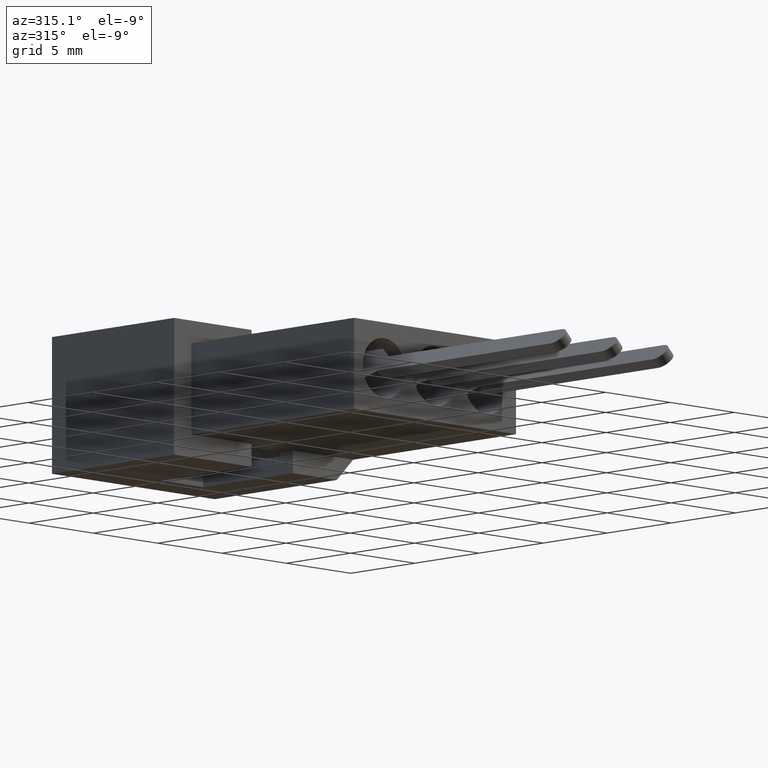
[diagram: clean part render]
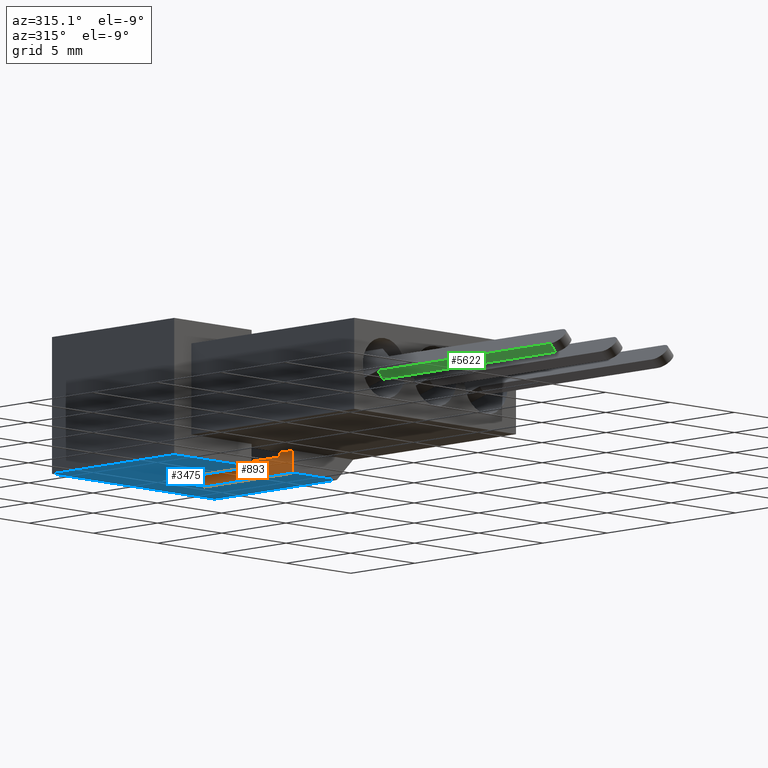
[diagram: same view with three faces highlighted in distinct colors, each labeled with its STEP entity id]
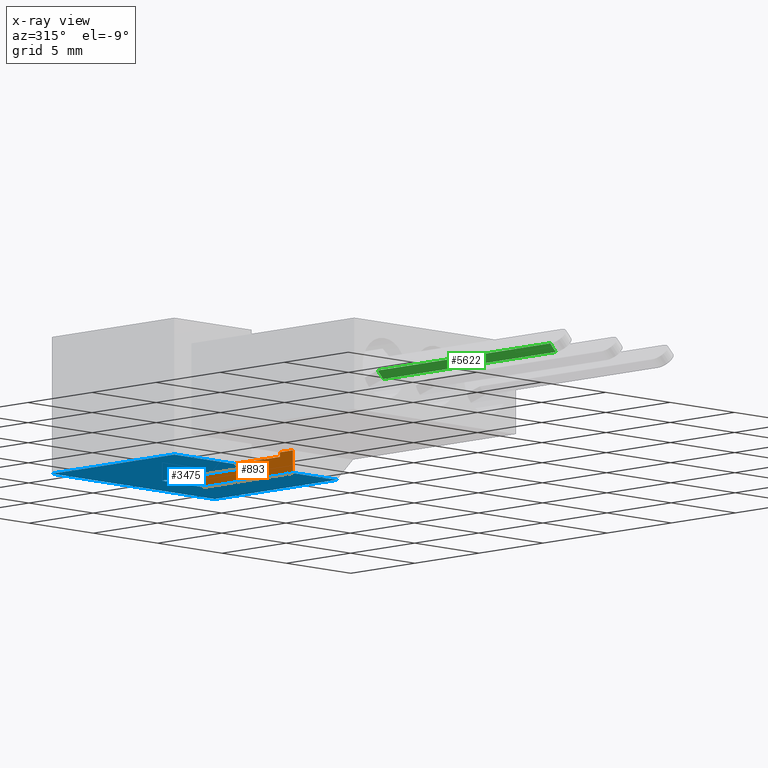
[diagram: x-ray of the same camera — body ghosted, the three highlighted faces saturated]
A machine part, auxiliary view with three faces highlighted in distinct colors.
The next image is the same camera in x-ray (body ghosted, the three faces saturated) — at least one of them is partly hidden behind the body in this view.
Their STEP definitions:

[orange] entity #893 — the highlighted planar face has unit normal (-1, -0, 0).
#45 = DIRECTION ( 'NONE',  ( 1.241749088029210900E-016, -1.000000000000000000, 0.0000000000000000000 ) ) ;
#85 = EDGE_CURVE ( 'NONE', #3598, #4006, #1397, .T. ) ;
#142 = CARTESIAN_POINT ( 'NONE',  ( 5.562599999999996200, 6.984999999999999400, -3.809999999999999600 ) ) ;
#167 = EDGE_CURVE ( 'NONE', #2145, #5290, #358, .T. ) ;
#174 = ORIENTED_EDGE ( 'NONE', *, *, #167, .T. ) ;
#253 = VECTOR ( 'NONE', #2744, 1000.000000000000000 ) ;
#280 = CARTESIAN_POINT ( 'NONE',  ( 5.562599999999997100, 3.919359615991188300E-016, -3.809999999999999600 ) ) ;
#358 = LINE ( 'NONE', #2122, #1166 ) ;
#653 = DIRECTION ( 'NONE',  ( -1.241749088029210900E-016, 1.000000000000000000, 0.0000000000000000000 ) ) ;
#772 = EDGE_LOOP ( 'NONE', ( #1433, #174, #2673, #6359, #4642, #4720 ) ) ;
#855 = EDGE_CURVE ( 'NONE', #1230, #5290, #4161, .T. ) ;
#893 = ADVANCED_FACE ( 'NONE', ( #5252 ), #2102, .T. ) ;
#1052 = DIRECTION ( 'NONE',  ( -1.000000000000000000, -1.241749088029210900E-016, 0.0000000000000000000 ) ) ;
#1057 = DIRECTION ( 'NONE',  ( 0.0000000000000000000, 0.0000000000000000000, -1.000000000000000000 ) ) ;
#1166 = VECTOR ( 'NONE', #2699, 1000.000000000000000 ) ;
#1178 = CARTESIAN_POINT ( 'NONE',  ( 5.562599999999992700, 0.0000000000000000000, -2.540000000000000000 ) ) ;
#1219 = CARTESIAN_POINT ( 'NONE',  ( 5.562599999999996200, 6.984999999999999400, -3.809999999999999600 ) ) ;
#1230 = VERTEX_POINT ( 'NONE', #280 ) ;
#1366 = VECTOR ( 'NONE', #1057, 1000.000000000000000 ) ;
#1386 = CARTESIAN_POINT ( 'NONE',  ( 5.562599999999996200, 6.984999999999999400, -2.794000000000000500 ) ) ;
#1397 = LINE ( 'NONE', #2193, #6043 ) ;
#1433 = ORIENTED_EDGE ( 'NONE', *, *, #3780, .T. ) ;
#1597 = LINE ( 'NONE', #5774, #253 ) ;
#2102 = PLANE ( 'NONE',  #3388 ) ;
#2122 = CARTESIAN_POINT ( 'NONE',  ( 5.562599999999996200, 6.984999999999999400, -2.539999999999999600 ) ) ;
#2145 = VERTEX_POINT ( 'NONE', #1386 ) ;
#2193 = CARTESIAN_POINT ( 'NONE',  ( 5.562599999999996200, 6.984999999999999400, -2.539999999999999600 ) ) ;
#2663 = CARTESIAN_POINT ( 'NONE',  ( 5.562599999999996200, 6.984999999999999400, -2.539999999999999600 ) ) ;
#2673 = ORIENTED_EDGE ( 'NONE', *, *, #855, .F. ) ;
#2699 = DIRECTION ( 'NONE',  ( -0.0000000000000000000, -0.0000000000000000000, -1.000000000000000000 ) ) ;
#2744 = DIRECTION ( 'NONE',  ( -1.241749088029210900E-016, 1.000000000000000000, 1.986106413798025200E-032 ) ) ;
#3164 = DIRECTION ( 'NONE',  ( -0.0000000000000000000, -0.0000000000000000000, -1.000000000000000000 ) ) ;
#3388 = AXIS2_PLACEMENT_3D ( 'NONE', #2663, #1052, #45 ) ;
#3598 = VERTEX_POINT ( 'NONE', #1178 ) ;
#3650 = VERTEX_POINT ( 'NONE', #4191 ) ;
#3780 = EDGE_CURVE ( 'NONE', #3650, #2145, #1597, .T. ) ;
#4006 = VERTEX_POINT ( 'NONE', #4966 ) ;
#4161 = LINE ( 'NONE', #142, #5331 ) ;
#4191 = CARTESIAN_POINT ( 'NONE',  ( 5.562599999999997100, 1.015999999999999600, -2.794000000000001400 ) ) ;
#4642 = ORIENTED_EDGE ( 'NONE', *, *, #85, .T. ) ;
#4668 = DIRECTION ( 'NONE',  ( -1.241749088029210900E-016, 1.000000000000000000, 0.0000000000000000000 ) ) ;
#4720 = ORIENTED_EDGE ( 'NONE', *, *, #5043, .T. ) ;
#4966 = CARTESIAN_POINT ( 'NONE',  ( 5.562599999999997100, 1.016000000000001300, -2.539999999999999600 ) ) ;
#4990 = CARTESIAN_POINT ( 'NONE',  ( 5.562599999999997100, 1.015999999999999600, 0.0000000000000000000 ) ) ;
#5043 = EDGE_CURVE ( 'NONE', #4006, #3650, #6401, .T. ) ;
#5189 = LINE ( 'NONE', #6060, #5269 ) ;
#5252 = FACE_OUTER_BOUND ( 'NONE', #772, .T. ) ;
#5269 = VECTOR ( 'NONE', #3164, 1000.000000000000000 ) ;
#5290 = VERTEX_POINT ( 'NONE', #1219 ) ;
#5331 = VECTOR ( 'NONE', #4668, 1000.000000000000000 ) ;
#5774 = CARTESIAN_POINT ( 'NONE',  ( 5.562599999999997100, 1.016000000000000700, -2.794000000000000900 ) ) ;
#6043 = VECTOR ( 'NONE', #653, 1000.000000000000000 ) ;
#6060 = CARTESIAN_POINT ( 'NONE',  ( 5.562599999999997100, 3.919359615991188300E-016, -2.539999999999999600 ) ) ;
#6178 = EDGE_CURVE ( 'NONE', #3598, #1230, #5189, .T. ) ;
#6359 = ORIENTED_EDGE ( 'NONE', *, *, #6178, .F. ) ;
#6401 = LINE ( 'NONE', #4990, #1366 ) ;

[blue] entity #3475 — the highlighted planar face has unit normal (0, 0, 1).
#11 = CARTESIAN_POINT ( 'NONE',  ( 5.562599999999996200, 6.984999999999999400, -3.809999999999999600 ) ) ;
#142 = CARTESIAN_POINT ( 'NONE',  ( 5.562599999999996200, 6.984999999999999400, -3.809999999999999600 ) ) ;
#280 = CARTESIAN_POINT ( 'NONE',  ( 5.562599999999997100, 3.919359615991188300E-016, -3.809999999999999600 ) ) ;
#302 = VECTOR ( 'NONE', #470, 1000.000000000000000 ) ;
#381 = LINE ( 'NONE', #11, #2697 ) ;
#392 = VERTEX_POINT ( 'NONE', #2327 ) ;
#443 = AXIS2_PLACEMENT_3D ( 'NONE', #5445, #3896, #4464 ) ;
#470 = DIRECTION ( 'NONE',  ( -1.000000000000000000, -0.0000000000000000000, -0.0000000000000000000 ) ) ;
#500 = CARTESIAN_POINT ( 'NONE',  ( -3.657599999999998600, 0.0000000000000000000, -3.809999999999999600 ) ) ;
#595 = ORIENTED_EDGE ( 'NONE', *, *, #855, .T. ) ;
#614 = LINE ( 'NONE', #3289, #302 ) ;
#855 = EDGE_CURVE ( 'NONE', #1230, #5290, #4161, .T. ) ;
#877 = PLANE ( 'NONE',  #443 ) ;
#880 = EDGE_CURVE ( 'NONE', #2115, #3885, #2963, .T. ) ;
#1018 = LINE ( 'NONE', #6233, #3811 ) ;
#1105 = DIRECTION ( 'NONE',  ( -1.000000000000000000, -0.0000000000000000000, -0.0000000000000000000 ) ) ;
#1219 = CARTESIAN_POINT ( 'NONE',  ( 5.562599999999996200, 6.984999999999999400, -3.809999999999999600 ) ) ;
#1230 = VERTEX_POINT ( 'NONE', #280 ) ;
#1242 = ORIENTED_EDGE ( 'NONE', *, *, #5536, .F. ) ;
#1251 = EDGE_CURVE ( 'NONE', #4083, #4798, #3118, .T. ) ;
#1375 = DIRECTION ( 'NONE',  ( 1.241749088029210900E-016, -1.000000000000000000, 0.0000000000000000000 ) ) ;
#1733 = CARTESIAN_POINT ( 'NONE',  ( 2.362199999999997400, 6.984999999999999400, -3.809999999999999600 ) ) ;
#2115 = VERTEX_POINT ( 'NONE', #4939 ) ;
#2327 = CARTESIAN_POINT ( 'NONE',  ( -3.657599999999998600, 9.525000000000000400, -3.809999999999999600 ) ) ;
#2431 = EDGE_CURVE ( 'NONE', #3885, #1230, #2638, .T. ) ;
#2575 = VECTOR ( 'NONE', #3115, 1000.000000000000000 ) ;
#2638 = LINE ( 'NONE', #500, #3820 ) ;
#2639 = ORIENTED_EDGE ( 'NONE', *, *, #1251, .T. ) ;
#2697 = VECTOR ( 'NONE', #3059, 1000.000000000000000 ) ;
#2703 = ORIENTED_EDGE ( 'NONE', *, *, #4628, .T. ) ;
#2801 = CARTESIAN_POINT ( 'NONE',  ( 2.362199999999998300, 0.0000000000000000000, -3.809999999999999600 ) ) ;
#2963 = LINE ( 'NONE', #4649, #2575 ) ;
#2992 = ORIENTED_EDGE ( 'NONE', *, *, #4288, .F. ) ;
#3059 = DIRECTION ( 'NONE',  ( -1.000000000000000000, 0.0000000000000000000, 0.0000000000000000000 ) ) ;
#3115 = DIRECTION ( 'NONE',  ( -0.0000000000000000000, -1.000000000000000000, -0.0000000000000000000 ) ) ;
#3118 = LINE ( 'NONE', #1733, #3282 ) ;
#3188 = CARTESIAN_POINT ( 'NONE',  ( 2.362199999999997400, 6.984999999999999400, -3.809999999999999600 ) ) ;
#3282 = VECTOR ( 'NONE', #1375, 1000.000000000000000 ) ;
#3289 = CARTESIAN_POINT ( 'NONE',  ( -3.657599999999998600, 9.525000000000000400, -3.809999999999999600 ) ) ;
#3475 = ADVANCED_FACE ( 'NONE', ( #5773 ), #877, .F. ) ;
#3513 = ORIENTED_EDGE ( 'NONE', *, *, #880, .T. ) ;
#3555 = ORIENTED_EDGE ( 'NONE', *, *, #5465, .T. ) ;
#3627 = CARTESIAN_POINT ( 'NONE',  ( -3.657599999999998600, 0.0000000000000000000, -3.809999999999999600 ) ) ;
#3811 = VECTOR ( 'NONE', #4250, 1000.000000000000000 ) ;
#3820 = VECTOR ( 'NONE', #5984, 1000.000000000000000 ) ;
#3885 = VERTEX_POINT ( 'NONE', #6514 ) ;
#3896 = DIRECTION ( 'NONE',  ( 0.0000000000000000000, 0.0000000000000000000, 1.000000000000000000 ) ) ;
#4083 = VERTEX_POINT ( 'NONE', #3188 ) ;
#4161 = LINE ( 'NONE', #142, #5331 ) ;
#4250 = DIRECTION ( 'NONE',  ( -0.0000000000000000000, -1.000000000000000000, -0.0000000000000000000 ) ) ;
#4288 = EDGE_CURVE ( 'NONE', #392, #4870, #1018, .T. ) ;
#4464 = DIRECTION ( 'NONE',  ( 1.000000000000000000, 0.0000000000000000000, -0.0000000000000000000 ) ) ;
#4628 = EDGE_CURVE ( 'NONE', #5290, #4083, #381, .T. ) ;
#4649 = CARTESIAN_POINT ( 'NONE',  ( 8.978899999999992300, 9.525000000000000400, -3.809999999999999600 ) ) ;
#4653 = VECTOR ( 'NONE', #1105, 1000.000000000000000 ) ;
#4659 = EDGE_LOOP ( 'NONE', ( #595, #2703, #2639, #3555, #2992, #1242, #3513, #6429 ) ) ;
#4668 = DIRECTION ( 'NONE',  ( -1.241749088029210900E-016, 1.000000000000000000, 0.0000000000000000000 ) ) ;
#4798 = VERTEX_POINT ( 'NONE', #2801 ) ;
#4870 = VERTEX_POINT ( 'NONE', #5390 ) ;
#4939 = CARTESIAN_POINT ( 'NONE',  ( 8.978899999999992300, 9.525000000000000400, -3.809999999999999600 ) ) ;
#5290 = VERTEX_POINT ( 'NONE', #1219 ) ;
#5331 = VECTOR ( 'NONE', #4668, 1000.000000000000000 ) ;
#5390 = CARTESIAN_POINT ( 'NONE',  ( -3.657599999999998600, 0.0000000000000000000, -3.809999999999999600 ) ) ;
#5445 = CARTESIAN_POINT ( 'NONE',  ( -3.657599999999998600, 9.525000000000000400, -3.809999999999999600 ) ) ;
#5465 = EDGE_CURVE ( 'NONE', #4798, #4870, #5968, .T. ) ;
#5536 = EDGE_CURVE ( 'NONE', #2115, #392, #614, .T. ) ;
#5773 = FACE_OUTER_BOUND ( 'NONE', #4659, .T. ) ;
#5968 = LINE ( 'NONE', #3627, #4653 ) ;
#5984 = DIRECTION ( 'NONE',  ( -1.000000000000000000, -0.0000000000000000000, -0.0000000000000000000 ) ) ;
#6233 = CARTESIAN_POINT ( 'NONE',  ( -3.657599999999998600, 9.525000000000000400, -3.809999999999999600 ) ) ;
#6429 = ORIENTED_EDGE ( 'NONE', *, *, #2431, .T. ) ;
#6514 = CARTESIAN_POINT ( 'NONE',  ( 8.978899999999992300, 0.0000000000000000000, -3.809999999999999600 ) ) ;

[green] entity #5622 — the highlighted planar face has unit normal (0.7071, -0, 0.7071).
#158 = DIRECTION ( 'NONE',  ( -1.288607544181256400E-016, -1.000000000000000000, 0.0000000000000000000 ) ) ;
#510 = EDGE_LOOP ( 'NONE', ( #1237, #6326, #6422, #5031 ) ) ;
#647 = CARTESIAN_POINT ( 'NONE',  ( -0.6350000000000000100, -7.594600000000003300, 0.3047999999999999600 ) ) ;
#1039 = VECTOR ( 'NONE', #2107, 1000.000000000000000 ) ;
#1199 = EDGE_CURVE ( 'NONE', #4251, #1994, #5630, .T. ) ;
#1237 = ORIENTED_EDGE ( 'NONE', *, *, #2735, .T. ) ;
#1343 = DIRECTION ( 'NONE',  ( -0.0000000000000000000, -0.0000000000000000000, -1.000000000000000000 ) ) ;
#1592 = CARTESIAN_POINT ( 'NONE',  ( -0.6350000000000017900, -21.05660000000000300, 0.3047999999999999600 ) ) ;
#1670 = DIRECTION ( 'NONE',  ( 1.288607544181256400E-016, 1.000000000000000000, 0.0000000000000000000 ) ) ;
#1713 = DIRECTION ( 'NONE',  ( 1.000000000000000000, -1.288607544181256400E-016, 0.0000000000000000000 ) ) ;
#1869 = CARTESIAN_POINT ( 'NONE',  ( -0.6350000000000017900, -21.05660000000000300, 0.3047999999999999600 ) ) ;
#1895 = VECTOR ( 'NONE', #158, 1000.000000000000000 ) ;
#1994 = VERTEX_POINT ( 'NONE', #3810 ) ;
#2107 = DIRECTION ( 'NONE',  ( -1.288607544181256400E-016, -1.000000000000000000, 0.0000000000000000000 ) ) ;
#2123 = FACE_OUTER_BOUND ( 'NONE', #510, .T. ) ;
#2689 = CARTESIAN_POINT ( 'NONE',  ( -0.6350000000000000100, -7.594600000000003300, 0.3047999999999999600 ) ) ;
#2713 = PLANE ( 'NONE',  #2950 ) ;
#2735 = EDGE_CURVE ( 'NONE', #1994, #4043, #3984, .T. ) ;
#2950 = AXIS2_PLACEMENT_3D ( 'NONE', #647, #1713, #1670 ) ;
#3396 = LINE ( 'NONE', #1869, #5905 ) ;
#3558 = LINE ( 'NONE', #2689, #1895 ) ;
#3761 = VECTOR ( 'NONE', #6250, 1000.000000000000000 ) ;
#3810 = CARTESIAN_POINT ( 'NONE',  ( -0.6350000000000000100, -7.594600000000003300, -0.3047999999999999600 ) ) ;
#3984 = LINE ( 'NONE', #5688, #1039 ) ;
#4041 = EDGE_CURVE ( 'NONE', #4251, #4104, #3558, .T. ) ;
#4043 = VERTEX_POINT ( 'NONE', #5546 ) ;
#4104 = VERTEX_POINT ( 'NONE', #1592 ) ;
#4251 = VERTEX_POINT ( 'NONE', #5754 ) ;
#4422 = EDGE_CURVE ( 'NONE', #4104, #4043, #3396, .T. ) ;
#5031 = ORIENTED_EDGE ( 'NONE', *, *, #1199, .T. ) ;
#5215 = CARTESIAN_POINT ( 'NONE',  ( -0.6350000000000000100, -7.594600000000003300, 0.3047999999999999600 ) ) ;
#5546 = CARTESIAN_POINT ( 'NONE',  ( -0.6350000000000017900, -21.05660000000000300, -0.3047999999999999600 ) ) ;
#5622 = ADVANCED_FACE ( 'NONE', ( #2123 ), #2713, .F. ) ;
#5630 = LINE ( 'NONE', #5215, #3761 ) ;
#5688 = CARTESIAN_POINT ( 'NONE',  ( -0.6350000000000000100, -7.594600000000003300, -0.3047999999999999600 ) ) ;
#5754 = CARTESIAN_POINT ( 'NONE',  ( -0.6350000000000000100, -7.594600000000003300, 0.3047999999999999600 ) ) ;
#5905 = VECTOR ( 'NONE', #1343, 1000.000000000000000 ) ;
#6250 = DIRECTION ( 'NONE',  ( -0.0000000000000000000, -0.0000000000000000000, -1.000000000000000000 ) ) ;
#6326 = ORIENTED_EDGE ( 'NONE', *, *, #4422, .F. ) ;
#6422 = ORIENTED_EDGE ( 'NONE', *, *, #4041, .F. ) ;